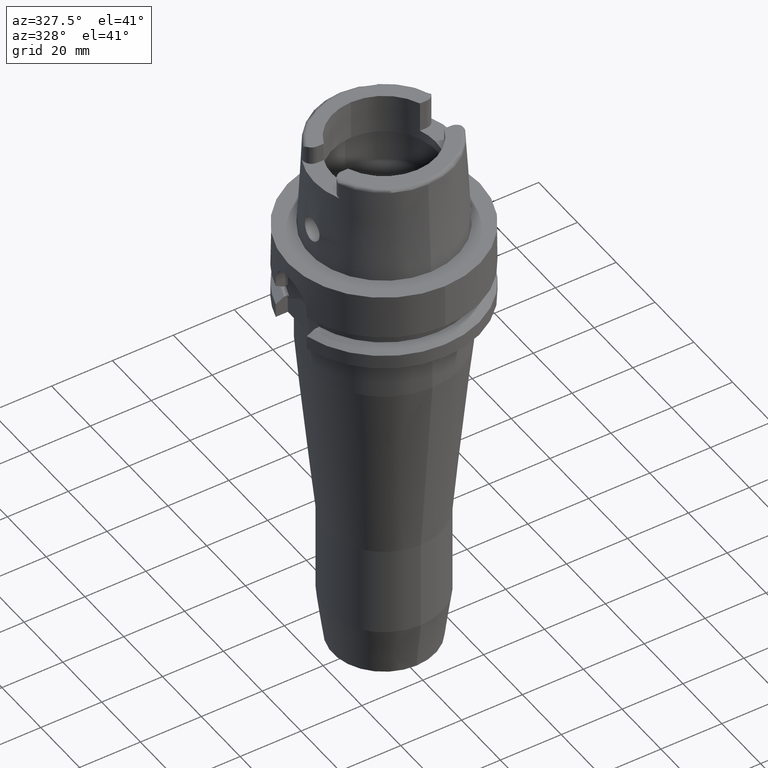
[diagram: clean part render]
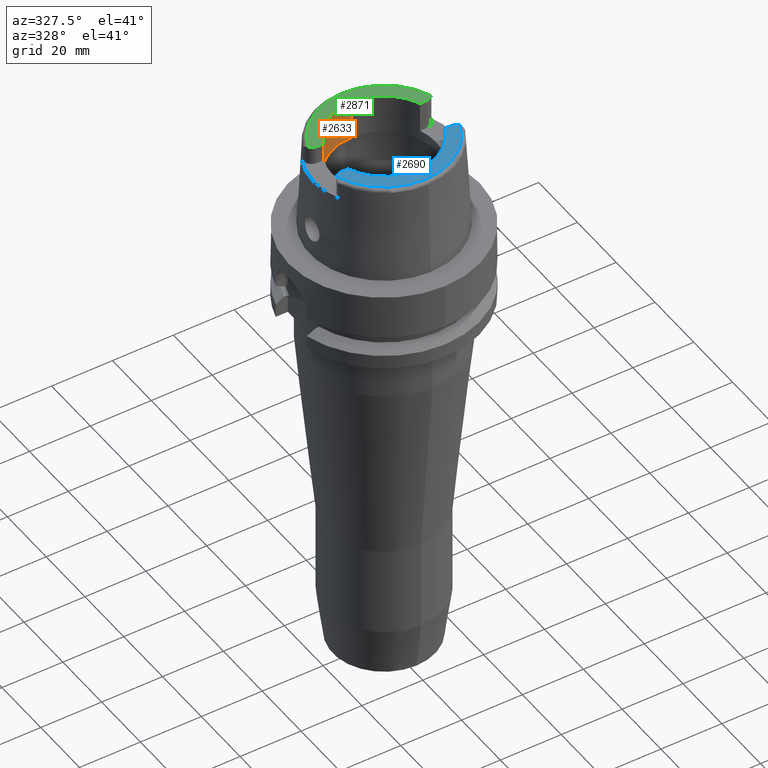
[diagram: same view with three faces highlighted in distinct colors, each labeled with its STEP entity id]
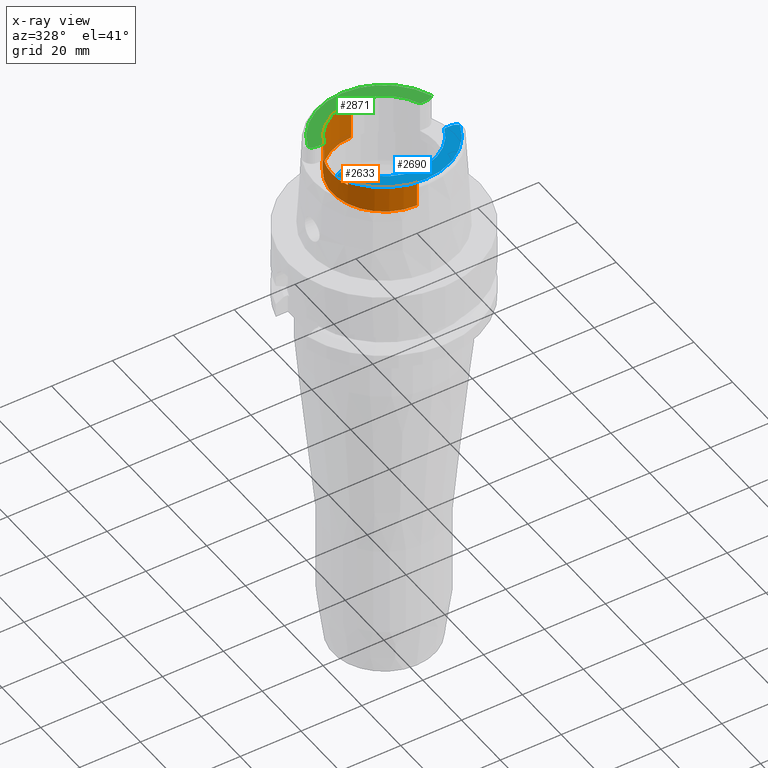
[diagram: x-ray of the same camera — body ghosted, the three highlighted faces saturated]
A machine part, auxiliary view with three faces highlighted in distinct colors.
The next image is the same camera in x-ray (body ghosted, the three faces saturated) — at least one of them is partly hidden behind the body in this view.
Their STEP definitions:

[orange] entity #2633 — the highlighted cylindrical surface (partial cylindrical patch) has radius 17 mm, axis along (0, 0, 1).
#17=DIRECTION('',(0.E0,0.E0,1.E0));
#18=VECTOR('',#17,6.E0);
#19=CARTESIAN_POINT('',(-1.580149043603E1,6.27E0,2.6E1));
#20=LINE('',#19,#18);
#25=DIRECTION('',(0.E0,7.376457760500E-14,1.E0));
#26=VECTOR('',#25,1.300397459622E1);
#27=CARTESIAN_POINT('',(0.E0,-1.7E1,1.899602540378E1));
#28=LINE('',#27,#26);
#32=DIRECTION('',(0.E0,0.E0,-1.E0));
#33=VECTOR('',#32,6.E0);
#34=CARTESIAN_POINT('',(-1.580149043603E1,-6.27E0,3.2E1));
#35=LINE('',#34,#33);
#39=CARTESIAN_POINT('',(0.E0,0.E0,2.6E1));
#40=DIRECTION('',(0.E0,0.E0,1.E0));
#41=DIRECTION('',(-9.294994374136E-1,3.688235294118E-1,0.E0));
#42=AXIS2_PLACEMENT_3D('',#39,#40,#41);
#114=CARTESIAN_POINT('',(0.E0,0.E0,3.2E1));
#115=DIRECTION('',(0.E0,0.E0,1.E0));
#116=DIRECTION('',(-9.294994374136E-1,-3.688235294118E-1,0.E0));
#117=AXIS2_PLACEMENT_3D('',#114,#115,#116);
#323=DIRECTION('',(0.E0,-7.376457760500E-14,1.E0));
#324=VECTOR('',#323,1.300397459622E1);
#325=CARTESIAN_POINT('',(0.E0,1.7E1,1.899602540378E1));
#326=LINE('',#325,#324);
#436=CARTESIAN_POINT('',(0.E0,0.E0,3.2E1));
#437=DIRECTION('',(0.E0,0.E0,1.E0));
#438=DIRECTION('',(0.E0,1.E0,0.E0));
#439=AXIS2_PLACEMENT_3D('',#436,#437,#438);
#2260=CARTESIAN_POINT('',(0.E0,0.E0,1.899602540378E1));
#2261=DIRECTION('',(0.E0,0.E0,-1.E0));
#2262=DIRECTION('',(0.E0,-1.E0,0.E0));
#2263=AXIS2_PLACEMENT_3D('',#2260,#2261,#2262);
#2275=CARTESIAN_POINT('',(-1.580149043603E1,6.27E0,2.6E1));
#2276=CARTESIAN_POINT('',(-1.580149043603E1,-6.27E0,2.6E1));
#2277=VERTEX_POINT('',#2275);
#2278=VERTEX_POINT('',#2276);
#2279=CARTESIAN_POINT('',(-1.580149043603E1,6.27E0,3.2E1));
#2280=VERTEX_POINT('',#2279);
#2281=CARTESIAN_POINT('',(0.E0,1.7E1,3.2E1));
#2282=VERTEX_POINT('',#2281);
#2283=CARTESIAN_POINT('',(0.E0,1.7E1,1.899602540378E1));
#2284=VERTEX_POINT('',#2283);
#2285=CARTESIAN_POINT('',(0.E0,-1.7E1,1.899602540378E1));
#2286=VERTEX_POINT('',#2285);
#2287=CARTESIAN_POINT('',(0.E0,-1.7E1,3.2E1));
#2288=VERTEX_POINT('',#2287);
#2289=CARTESIAN_POINT('',(-1.580149043603E1,-6.27E0,3.2E1));
#2290=VERTEX_POINT('',#2289);
#2610=CARTESIAN_POINT('',(0.E0,0.E0,-1.591E2));
#2611=DIRECTION('',(0.E0,0.E0,1.E0));
#2612=DIRECTION('',(0.E0,1.E0,0.E0));
#2613=AXIS2_PLACEMENT_3D('',#2610,#2611,#2612);
#2614=CYLINDRICAL_SURFACE('',#2613,1.7E1);
#2616=ORIENTED_EDGE('',*,*,#2615,.F.);
#2618=ORIENTED_EDGE('',*,*,#2617,.T.);
#2620=ORIENTED_EDGE('',*,*,#2619,.F.);
#2622=ORIENTED_EDGE('',*,*,#2621,.F.);
#2624=ORIENTED_EDGE('',*,*,#2623,.F.);
#2626=ORIENTED_EDGE('',*,*,#2625,.T.);
#2628=ORIENTED_EDGE('',*,*,#2627,.F.);
#2630=ORIENTED_EDGE('',*,*,#2629,.T.);
#2631=EDGE_LOOP('',(#2616,#2618,#2620,#2622,#2624,#2626,#2628,#2630));
#2632=FACE_OUTER_BOUND('',#2631,.F.);
#43=CIRCLE('',#42,1.7E1);
#118=CIRCLE('',#117,1.7E1);
#440=CIRCLE('',#439,1.7E1);
#2264=CIRCLE('',#2263,1.7E1);
#2615=EDGE_CURVE('',#2277,#2278,#43,.T.);
#2617=EDGE_CURVE('',#2277,#2280,#20,.T.);
#2619=EDGE_CURVE('',#2282,#2280,#440,.T.);
#2621=EDGE_CURVE('',#2284,#2282,#326,.T.);
#2623=EDGE_CURVE('',#2286,#2284,#2264,.T.);
#2625=EDGE_CURVE('',#2286,#2288,#28,.T.);
#2627=EDGE_CURVE('',#2290,#2288,#118,.T.);
#2629=EDGE_CURVE('',#2290,#2278,#35,.T.);
#2633=ADVANCED_FACE('',(#2632),#2614,.F.);

[blue] entity #2690 — the highlighted planar face has unit normal (0, 0, 1).
#99=DIRECTION('',(-1.E0,8.644330667353E-14,0.E0));
#100=VECTOR('',#99,2.188509563969E0);
#101=CARTESIAN_POINT('',(-1.580149043603E1,-6.27E0,3.2E1));
#102=LINE('',#101,#100);
#106=CARTESIAN_POINT('',(-1.799E1,-9.15E0,3.2E1));
#107=DIRECTION('',(0.E0,0.E0,-1.E0));
#108=DIRECTION('',(-7.912216523764E-1,6.115294733787E-1,0.E0));
#109=AXIS2_PLACEMENT_3D('',#106,#107,#108);
#114=CARTESIAN_POINT('',(0.E0,0.E0,3.2E1));
#115=DIRECTION('',(0.E0,0.E0,1.E0));
#116=DIRECTION('',(-9.294994374136E-1,-3.688235294118E-1,0.E0));
#117=AXIS2_PLACEMENT_3D('',#114,#115,#116);
#122=CARTESIAN_POINT('',(0.E0,0.E0,3.2E1));
#123=DIRECTION('',(0.E0,0.E0,1.E0));
#124=DIRECTION('',(0.E0,-1.E0,0.E0));
#125=AXIS2_PLACEMENT_3D('',#122,#123,#124);
#130=CARTESIAN_POINT('',(1.799E1,-9.15E0,3.2E1));
#131=DIRECTION('',(0.E0,0.E0,-1.E0));
#132=DIRECTION('',(0.E0,1.E0,0.E0));
#133=AXIS2_PLACEMENT_3D('',#130,#131,#132);
#138=CARTESIAN_POINT('',(0.E0,0.E0,3.2E1));
#139=DIRECTION('',(0.E0,0.E0,-1.E0));
#140=DIRECTION('',(9.395199128801E-1,-3.424942821446E-1,0.E0));
#141=AXIS2_PLACEMENT_3D('',#138,#139,#140);
#309=DIRECTION('',(-1.E0,-8.806665515566E-14,0.E0));
#310=VECTOR('',#309,2.188509563969E0);
#311=CARTESIAN_POINT('',(1.799E1,-6.27E0,3.2E1));
#312=LINE('',#311,#310);
#2287=CARTESIAN_POINT('',(0.E0,-1.7E1,3.2E1));
#2288=VERTEX_POINT('',#2287);
#2289=CARTESIAN_POINT('',(-1.580149043603E1,-6.27E0,3.2E1));
#2290=VERTEX_POINT('',#2289);
#2303=CARTESIAN_POINT('',(-1.799E1,-6.27E0,3.2E1));
#2304=VERTEX_POINT('',#2303);
#2315=CARTESIAN_POINT('',(-2.026871835884E1,-7.388795116669E0,3.2E1));
#2316=VERTEX_POINT('',#2315);
#2317=CARTESIAN_POINT('',(1.580149043603E1,-6.27E0,3.2E1));
#2318=VERTEX_POINT('',#2317);
#2319=CARTESIAN_POINT('',(1.799E1,-6.27E0,3.2E1));
#2320=VERTEX_POINT('',#2319);
#2321=CARTESIAN_POINT('',(2.026871835884E1,-7.388795116670E0,3.2E1));
#2322=VERTEX_POINT('',#2321);
#2671=CARTESIAN_POINT('',(0.E0,0.E0,3.2E1));
#2672=DIRECTION('',(0.E0,0.E0,1.E0));
#2673=DIRECTION('',(0.E0,1.E0,0.E0));
#2674=AXIS2_PLACEMENT_3D('',#2671,#2672,#2673);
#2675=PLANE('',#2674);
#2677=ORIENTED_EDGE('',*,*,#2676,.T.);
#2678=ORIENTED_EDGE('',*,*,#2663,.F.);
#2679=ORIENTED_EDGE('',*,*,#2627,.T.);
#2681=ORIENTED_EDGE('',*,*,#2680,.T.);
#2683=ORIENTED_EDGE('',*,*,#2682,.F.);
#2685=ORIENTED_EDGE('',*,*,#2684,.T.);
#2687=ORIENTED_EDGE('',*,*,#2686,.T.);
#2688=EDGE_LOOP('',(#2677,#2678,#2679,#2681,#2683,#2685,#2687));
#2689=FACE_OUTER_BOUND('',#2688,.F.);
#110=CIRCLE('',#109,2.88E0);
#118=CIRCLE('',#117,1.7E1);
#126=CIRCLE('',#125,1.7E1);
#134=CIRCLE('',#133,2.88E0);
#142=CIRCLE('',#141,2.157348458609E1);
#2627=EDGE_CURVE('',#2290,#2288,#118,.T.);
#2663=EDGE_CURVE('',#2290,#2304,#102,.T.);
#2676=EDGE_CURVE('',#2316,#2304,#110,.T.);
#2680=EDGE_CURVE('',#2288,#2318,#126,.T.);
#2682=EDGE_CURVE('',#2320,#2318,#312,.T.);
#2684=EDGE_CURVE('',#2320,#2322,#134,.T.);
#2686=EDGE_CURVE('',#2322,#2316,#142,.T.);
#2690=ADVANCED_FACE('',(#2689),#2675,.T.);

[green] entity #2871 — the highlighted planar face has unit normal (0, 0, 1).
#397=DIRECTION('',(1.E0,-8.522579531193E-14,0.E0));
#398=VECTOR('',#397,2.188509563969E0);
#399=CARTESIAN_POINT('',(1.580149043603E1,6.27E0,3.2E1));
#400=LINE('',#399,#398);
#404=CARTESIAN_POINT('',(-1.799E1,9.15E0,3.2E1));
#405=DIRECTION('',(0.E0,0.E0,-1.E0));
#406=DIRECTION('',(0.E0,-1.E0,0.E0));
#407=AXIS2_PLACEMENT_3D('',#404,#405,#406);
#412=CARTESIAN_POINT('',(0.E0,0.E0,3.2E1));
#413=DIRECTION('',(0.E0,0.E0,-1.E0));
#414=DIRECTION('',(-9.395199128801E-1,3.424942821446E-1,0.E0));
#415=AXIS2_PLACEMENT_3D('',#412,#413,#414);
#420=CARTESIAN_POINT('',(1.799E1,9.15E0,3.2E1));
#421=DIRECTION('',(0.E0,0.E0,-1.E0));
#422=DIRECTION('',(7.912216523764E-1,-6.115294733787E-1,0.E0));
#423=AXIS2_PLACEMENT_3D('',#420,#421,#422);
#428=CARTESIAN_POINT('',(0.E0,0.E0,3.2E1));
#429=DIRECTION('',(0.E0,0.E0,1.E0));
#430=DIRECTION('',(9.294994374136E-1,3.688235294118E-1,0.E0));
#431=AXIS2_PLACEMENT_3D('',#428,#429,#430);
#436=CARTESIAN_POINT('',(0.E0,0.E0,3.2E1));
#437=DIRECTION('',(0.E0,0.E0,1.E0));
#438=DIRECTION('',(0.E0,1.E0,0.E0));
#439=AXIS2_PLACEMENT_3D('',#436,#437,#438);
#444=DIRECTION('',(1.E0,8.644330667353E-14,0.E0));
#445=VECTOR('',#444,2.188509563969E0);
#446=CARTESIAN_POINT('',(-1.799E1,6.27E0,3.2E1));
#447=LINE('',#446,#445);
#2279=CARTESIAN_POINT('',(-1.580149043603E1,6.27E0,3.2E1));
#2280=VERTEX_POINT('',#2279);
#2281=CARTESIAN_POINT('',(0.E0,1.7E1,3.2E1));
#2282=VERTEX_POINT('',#2281);
#2305=CARTESIAN_POINT('',(-1.799E1,6.27E0,3.2E1));
#2306=VERTEX_POINT('',#2305);
#2307=CARTESIAN_POINT('',(-2.026871835884E1,7.388795116670E0,3.2E1));
#2308=VERTEX_POINT('',#2307);
#2309=CARTESIAN_POINT('',(2.026871835884E1,7.388795116669E0,3.2E1));
#2310=VERTEX_POINT('',#2309);
#2311=CARTESIAN_POINT('',(1.799E1,6.27E0,3.2E1));
#2312=VERTEX_POINT('',#2311);
#2313=CARTESIAN_POINT('',(1.580149043603E1,6.27E0,3.2E1));
#2314=VERTEX_POINT('',#2313);
#2853=CARTESIAN_POINT('',(0.E0,0.E0,3.2E1));
#2854=DIRECTION('',(0.E0,0.E0,1.E0));
#2855=DIRECTION('',(0.E0,1.E0,0.E0));
#2856=AXIS2_PLACEMENT_3D('',#2853,#2854,#2855);
#2857=PLANE('',#2856);
#2859=ORIENTED_EDGE('',*,*,#2858,.F.);
#2861=ORIENTED_EDGE('',*,*,#2860,.T.);
#2863=ORIENTED_EDGE('',*,*,#2862,.T.);
#2865=ORIENTED_EDGE('',*,*,#2864,.T.);
#2866=ORIENTED_EDGE('',*,*,#2844,.F.);
#2867=ORIENTED_EDGE('',*,*,#2811,.T.);
#2868=ORIENTED_EDGE('',*,*,#2619,.T.);
#2869=EDGE_LOOP('',(#2859,#2861,#2863,#2865,#2866,#2867,#2868));
#2870=FACE_OUTER_BOUND('',#2869,.F.);
#408=CIRCLE('',#407,2.88E0);
#416=CIRCLE('',#415,2.157348458609E1);
#424=CIRCLE('',#423,2.88E0);
#432=CIRCLE('',#431,1.7E1);
#440=CIRCLE('',#439,1.7E1);
#2619=EDGE_CURVE('',#2282,#2280,#440,.T.);
#2811=EDGE_CURVE('',#2314,#2282,#432,.T.);
#2844=EDGE_CURVE('',#2314,#2312,#400,.T.);
#2858=EDGE_CURVE('',#2306,#2280,#447,.T.);
#2860=EDGE_CURVE('',#2306,#2308,#408,.T.);
#2862=EDGE_CURVE('',#2308,#2310,#416,.T.);
#2864=EDGE_CURVE('',#2310,#2312,#424,.T.);
#2871=ADVANCED_FACE('',(#2870),#2857,.T.);